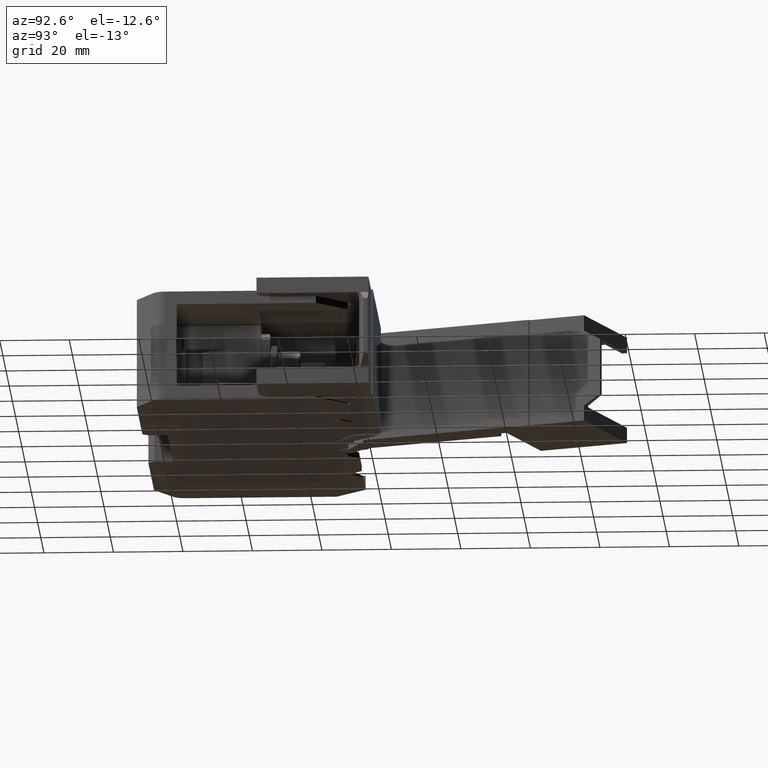
[diagram: clean part render]
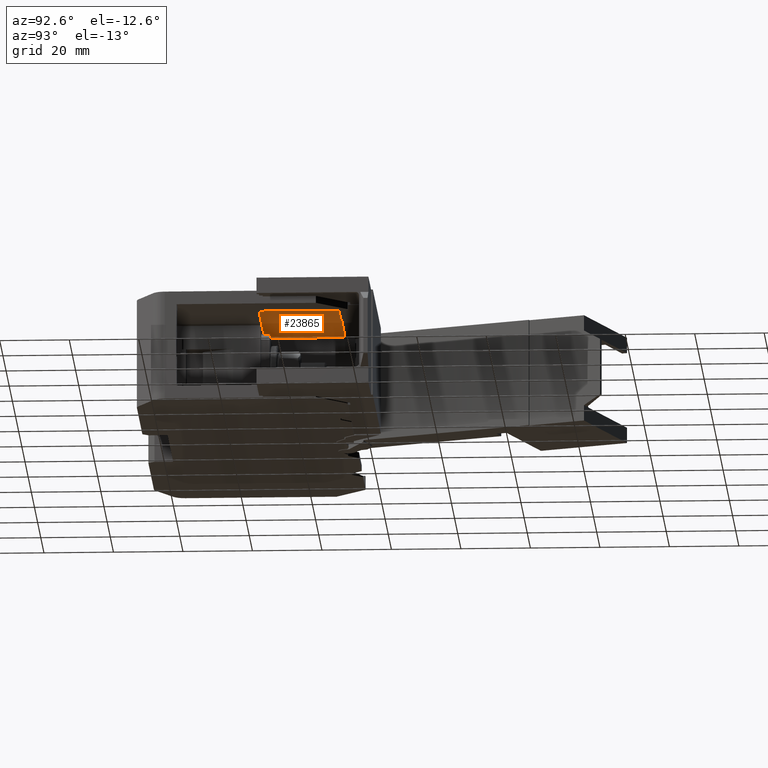
[diagram: same view with one face highlighted and labeled with its STEP entity id]
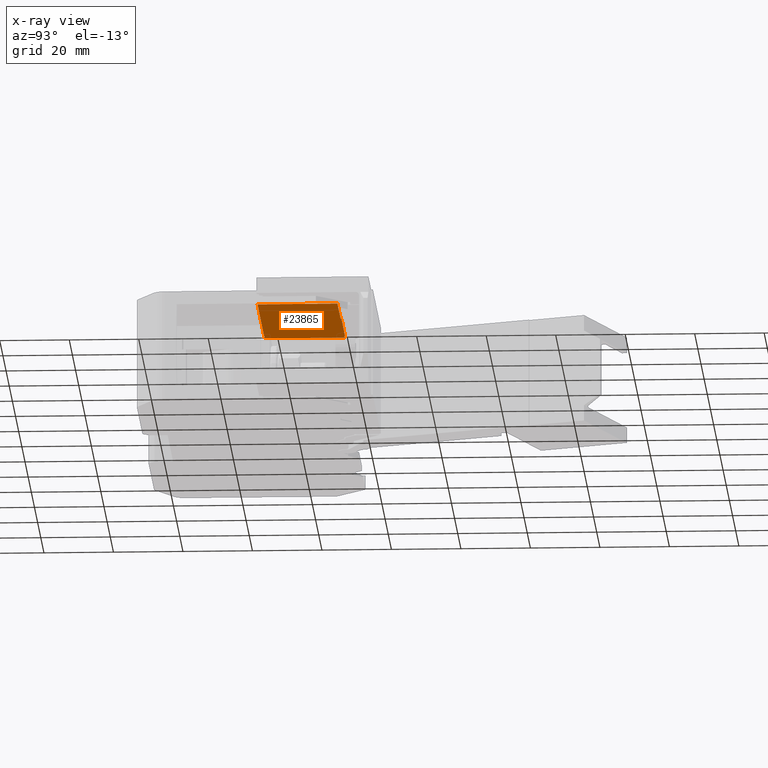
[diagram: x-ray of the same camera — body ghosted, the highlighted face saturated]
A machine part, auxiliary view. The second image highlights one B-rep face of the part: STEP entity #23865.
The next image is the same camera in x-ray: the body ghosted, the highlighted face saturated — about 0% of this face is hidden behind the body in this view.
In plain terms, the highlighted planar face has unit normal (0, 0, -1).
Its self-contained STEP definition (entity closure, byte-faithful):
#1826 = EDGE_CURVE ( 'NONE', #12716, #12691, #12429, .T. ) ;
#1853 = EDGE_CURVE ( 'NONE', #12663, #12695, #13767, .T. ) ;
#1866 = EDGE_CURVE ( 'NONE', #12716, #12679, #13780, .T. ) ;
#1895 = EDGE_CURVE ( 'NONE', #12700, #12695, #13890, .T. ) ;
#1896 = EDGE_CURVE ( 'NONE', #12673, #12664, #13896, .T. ) ;
#1916 = EDGE_CURVE ( 'NONE', #12679, #12701, #14003, .T. ) ;
#1928 = EDGE_CURVE ( 'NONE', #12701, #12664, #14047, .T. ) ;
#1943 = EDGE_CURVE ( 'NONE', #12673, #12663, #14105, .T. ) ;
#1944 = EDGE_CURVE ( 'NONE', #12700, #12691, #14084, .T. ) ;
#2448 = AXIS2_PLACEMENT_3D ( 'NONE', #4977, #4991, #4970 ) ;
#4970 = DIRECTION ( 'NONE',  ( 0.0000000000000000000, 1.000000000000000000, 6.982966722218760200E-015 ) ) ;
#4976 = FACE_OUTER_BOUND ( 'NONE', #9340, .T. ) ;
#4977 = CARTESIAN_POINT ( 'NONE',  ( 106.2499821520390000, 7.999997002953389100, 27.49999999999744900 ) ) ;
#4981 = PLANE ( 'NONE',  #2448 ) ;
#4991 = DIRECTION ( 'NONE',  ( 0.0000000000000000000, 6.982966722218760200E-015, -1.000000000000000000 ) ) ;
#7554 = VECTOR ( 'NONE', #12441, 1000.000000000000000 ) ;
#7608 = VECTOR ( 'NONE', #13772, 1000.000000000000000 ) ;
#7624 = VECTOR ( 'NONE', #13802, 1000.000000000000000 ) ;
#7638 = VECTOR ( 'NONE', #13883, 1000.000000000000000 ) ;
#7647 = VECTOR ( 'NONE', #13970, 1000.000000000000000 ) ;
#7654 = VECTOR ( 'NONE', #13899, 1000.000000000000000 ) ;
#7664 = VECTOR ( 'NONE', #14087, 1000.000000000000000 ) ;
#7688 = VECTOR ( 'NONE', #14051, 1000.000000000000100 ) ;
#7697 = VECTOR ( 'NONE', #14101, 1000.000000000000000 ) ;
#9340 = EDGE_LOOP ( 'NONE', ( #18013, #17929, #17975, #17986, #17967, #17995, #17989, #18025, #17897 ) ) ;
#12429 = LINE ( 'NONE', #12465, #7554 ) ;
#12441 = DIRECTION ( 'NONE',  ( -1.000000000000000000, -1.547632960056569900E-016, -1.080706945828394300E-030 ) ) ;
#12465 = CARTESIAN_POINT ( 'NONE',  ( 216.7505728393240100, 32.50000057880242800, 27.49999999999763700 ) ) ;
#12663 = VERTEX_POINT ( 'NONE', #26440 ) ;
#12664 = VERTEX_POINT ( 'NONE', #26426 ) ;
#12673 = VERTEX_POINT ( 'NONE', #26427 ) ;
#12679 = VERTEX_POINT ( 'NONE', #26457 ) ;
#12691 = VERTEX_POINT ( 'NONE', #26430 ) ;
#12695 = VERTEX_POINT ( 'NONE', #26452 ) ;
#12700 = VERTEX_POINT ( 'NONE', #26520 ) ;
#12701 = VERTEX_POINT ( 'NONE', #26498 ) ;
#12716 = VERTEX_POINT ( 'NONE', #26521 ) ;
#13767 = LINE ( 'NONE', #13768, #7608 ) ;
#13768 = CARTESIAN_POINT ( 'NONE',  ( 216.7499829268996600, 7.999997002953389100, 27.49999999999764500 ) ) ;
#13772 = DIRECTION ( 'NONE',  ( -0.0000000000000000000, -1.000000000000000000, -0.0000000000000000000 ) ) ;
#13780 = LINE ( 'NONE', #13794, #7624 ) ;
#13794 = CARTESIAN_POINT ( 'NONE',  ( 173.6271780853805100, 32.58786854444645800, 27.49999999999763700 ) ) ;
#13802 = DIRECTION ( 'NONE',  ( 0.7071067811865441300, 0.7071067811865510100, 0.0000000000000000000 ) ) ;
#13882 = CARTESIAN_POINT ( 'NONE',  ( 216.7505728393240100, 32.50000057880242800, 27.49999999999765200 ) ) ;
#13883 = DIRECTION ( 'NONE',  ( -1.000000000000000000, -1.547632960056569900E-016, -1.080706945828394300E-030 ) ) ;
#13890 = LINE ( 'NONE', #13893, #7654 ) ;
#13893 = CARTESIAN_POINT ( 'NONE',  ( 124.2500041961109900, 9.499997447848647500, 27.49999999999744200 ) ) ;
#13896 = LINE ( 'NONE', #13882, #7638 ) ;
#13899 = DIRECTION ( 'NONE',  ( 1.000000000000000000, 0.0000000000000000000, -0.0000000000000000000 ) ) ;
#13970 = DIRECTION ( 'NONE',  ( 1.000000000000000000, 4.718447854656900300E-015, -0.0000000000000000000 ) ) ;
#13975 = CARTESIAN_POINT ( 'NONE',  ( 211.5280166219705200, 32.74205225706135300, 27.49999999999763700 ) ) ;
#14003 = LINE ( 'NONE', #13975, #7647 ) ;
#14047 = LINE ( 'NONE', #14067, #7688 ) ;
#14051 = DIRECTION ( 'NONE',  ( 0.7071067811865474600, -0.7071067811865474600, 0.0000000000000000000 ) ) ;
#14067 = CARTESIAN_POINT ( 'NONE',  ( 196.5378505051134800, 32.58786854444615200, 27.49999999999762700 ) ) ;
#14082 = CARTESIAN_POINT ( 'NONE',  ( 171.9150460510239800, 44.36659773048390300, 27.49999999999744200 ) ) ;
#14084 = LINE ( 'NONE', #14082, #7664 ) ;
#14087 = DIRECTION ( 'NONE',  ( 0.0000000000000000000, 1.000000000000000000, -0.0000000000000000000 ) ) ;
#14092 = CARTESIAN_POINT ( 'NONE',  ( 216.7499829268990100, 30.04205247032319900, 27.49999999999764800 ) ) ;
#14101 = DIRECTION ( 'NONE',  ( -0.0002161663685941095800, -0.9999999766360503400, -0.0000000000000000000 ) ) ;
#14105 = LINE ( 'NONE', #14092, #7697 ) ;
#17897 = ORIENTED_EDGE ( 'NONE', *, *, #1896, .F. ) ;
#17929 = ORIENTED_EDGE ( 'NONE', *, *, #1853, .T. ) ;
#17967 = ORIENTED_EDGE ( 'NONE', *, *, #1826, .F. ) ;
#17975 = ORIENTED_EDGE ( 'NONE', *, *, #1895, .F. ) ;
#17986 = ORIENTED_EDGE ( 'NONE', *, *, #1944, .T. ) ;
#17989 = ORIENTED_EDGE ( 'NONE', *, *, #1916, .T. ) ;
#17995 = ORIENTED_EDGE ( 'NONE', *, *, #1866, .T. ) ;
#18013 = ORIENTED_EDGE ( 'NONE', *, *, #1943, .T. ) ;
#18025 = ORIENTED_EDGE ( 'NONE', *, *, #1928, .T. ) ;
#23865 = ADVANCED_FACE ( 'NONE', ( #4976 ), #4981, .T. ) ;
#26426 = CARTESIAN_POINT ( 'NONE',  ( 196.6257184707574800, 32.50000057880238600, 27.49999999999764100 ) ) ;
#26427 = CARTESIAN_POINT ( 'NONE',  ( 216.7505142526282500, 32.50000057880242100, 27.49999999999765200 ) ) ;
#26430 = CARTESIAN_POINT ( 'NONE',  ( 171.9150460510239800, 32.50000057880242100, 27.49999999999756300 ) ) ;
#26440 = CARTESIAN_POINT ( 'NONE',  ( 216.7499829269015100, 30.04205249832304500, 27.49999999999764800 ) ) ;
#26452 = CARTESIAN_POINT ( 'NONE',  ( 216.7499829269015100, 9.499997447848647500, 27.49999999999751000 ) ) ;
#26457 = CARTESIAN_POINT ( 'NONE',  ( 173.7813617979951700, 32.74205225706115400, 27.49999999999763700 ) ) ;
#26498 = CARTESIAN_POINT ( 'NONE',  ( 196.3836667924984500, 32.74205225706122500, 27.49999999999762700 ) ) ;
#26520 = CARTESIAN_POINT ( 'NONE',  ( 171.9150460510240100, 9.499997447848647500, 27.49999999999744600 ) ) ;
#26521 = CARTESIAN_POINT ( 'NONE',  ( 173.5393101197366000, 32.50000057880248500, 27.49999999999763700 ) ) ;